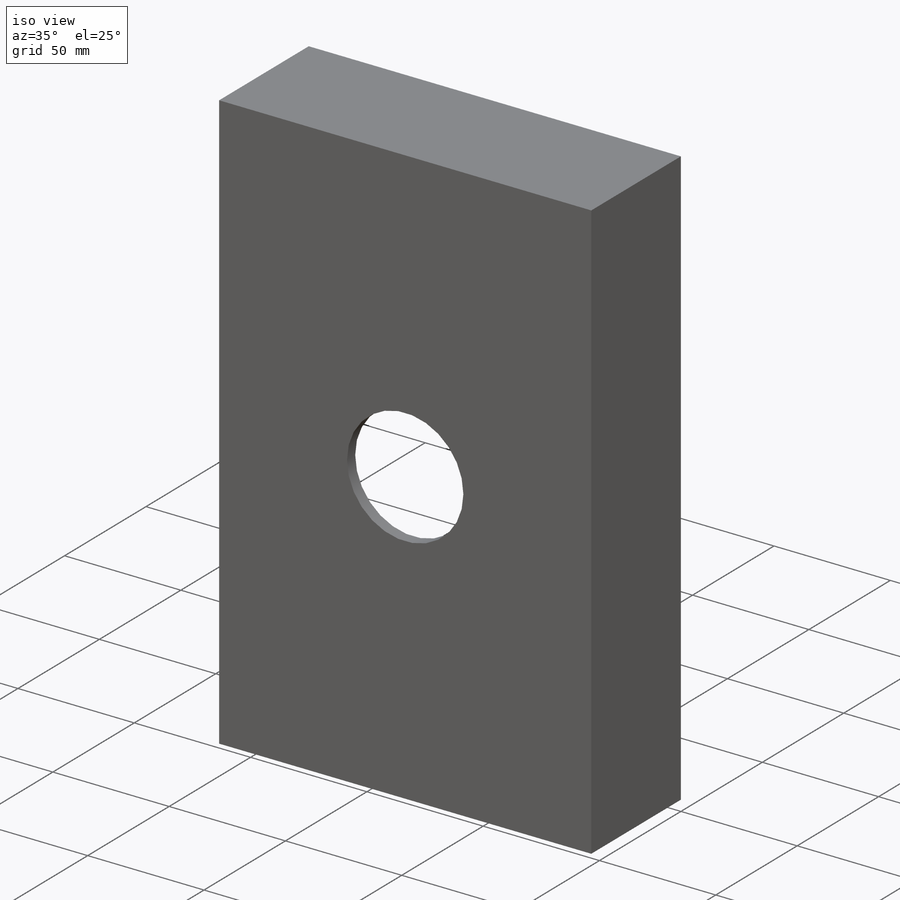
[diagram: iso view]
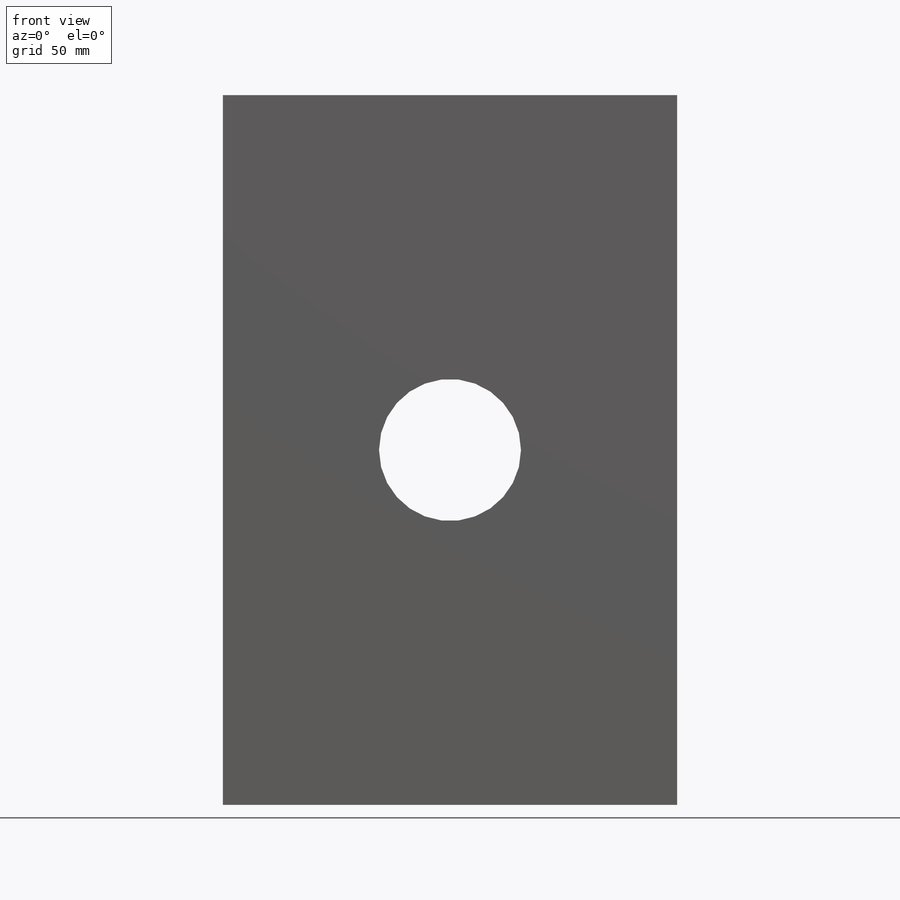
[diagram: front view]
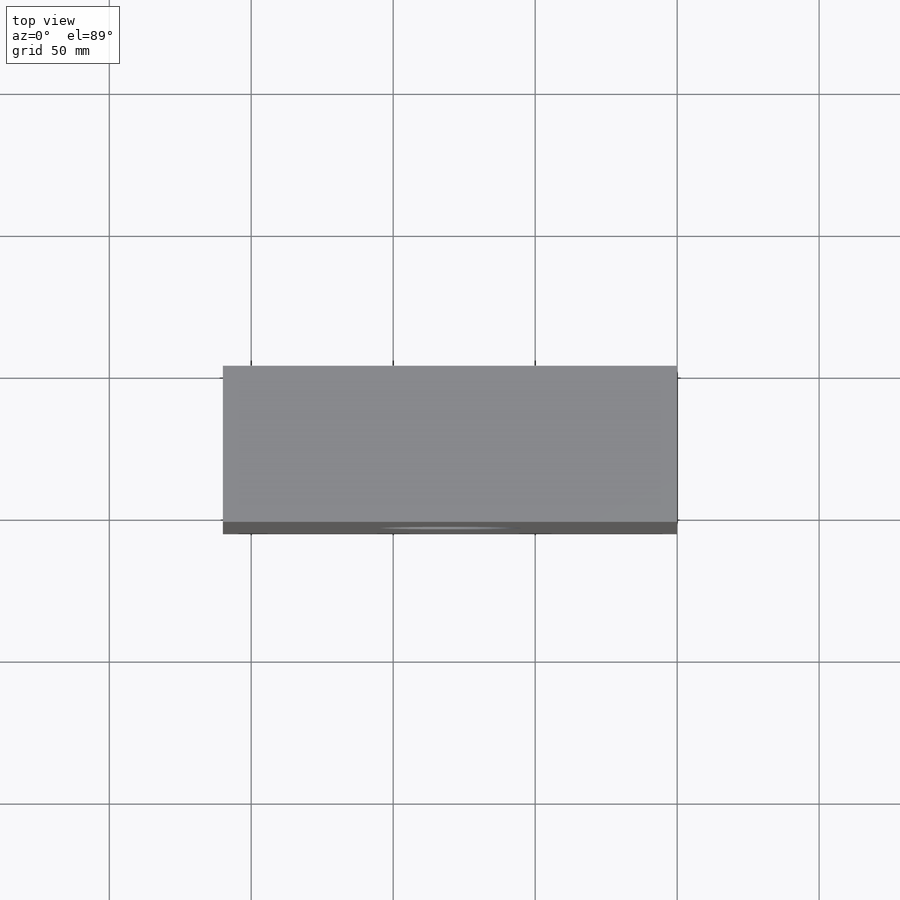
[diagram: top view]
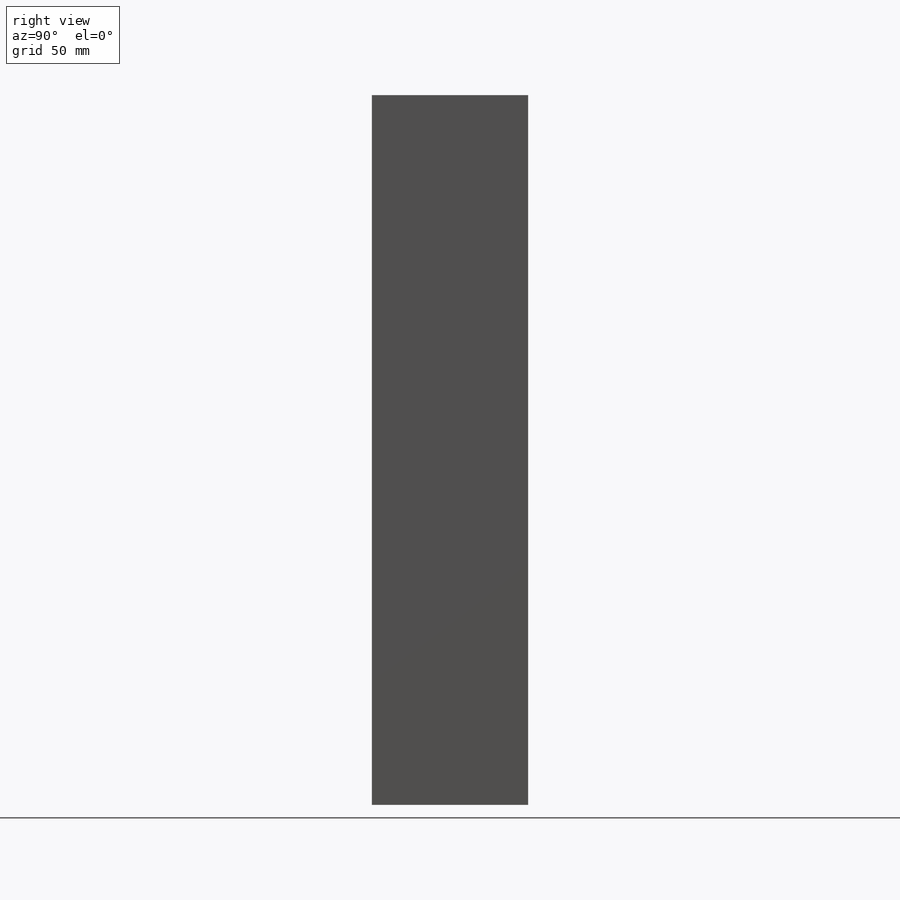
[diagram: right view]
SOLIDWORKS PART (.sldprt)
format: sldprt  version: not decoded by parser v0  size: 145,408 bytes
history: native  units: mm
features: sketch x4, plane x3, extrude x2, material x1, cut_extrude x1 (+9 scaffold rows collapsed)
feature tree (20):
  scaffold x9  (default folders/planes/origin — collapsed)
  material  "Matériau <non spécifié>"
  plane  "Plan de face"
  plane  "Plan de dessus"
  plane  "Plan de droite"
  sketch  "Esquisse1"  dims[D1=250.0mm D2=160.0mm D3=5.0mm]
  extrude  "Boss.-Extru.1"  Depth=50mm
  sketch  "Esquisse2"
  extrude  "Boss.-Extru.2"  Depth=5mm
  sketch  "Esquisse3"  dims[c1.D1=50.0mm c1.D2=260.0mm c2.D1=250.0mm c2.D3=0.0mm c2.D4=50.0mm c2.D5=250.0mm]
  sketch  "Esquisse4"  dims[c1.D2=~80.920647mm c1.D3=50.0mm c1.D1=125.0mm c2.D2=80.0mm]
  cut_extrude  "Enlèv. mat.-Extru.1"  Depth=10mm
decode coverage: 6 of 7 modeling features carry decoded parameters
note: ~ marks probable driven/reference dimensions
note: suppression state not decoded; provenance and decode notes live in map.json
